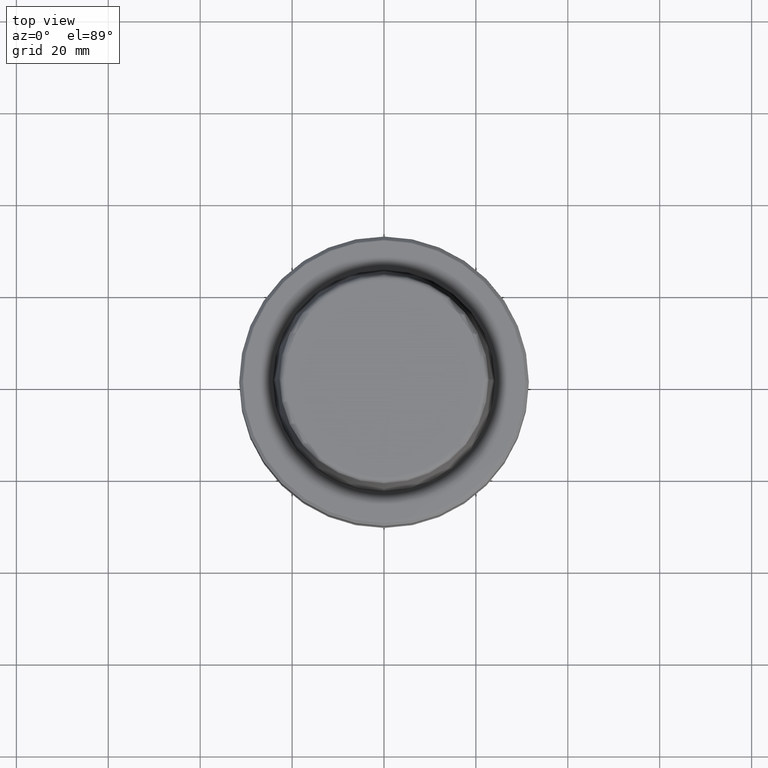
[diagram: clean part render]
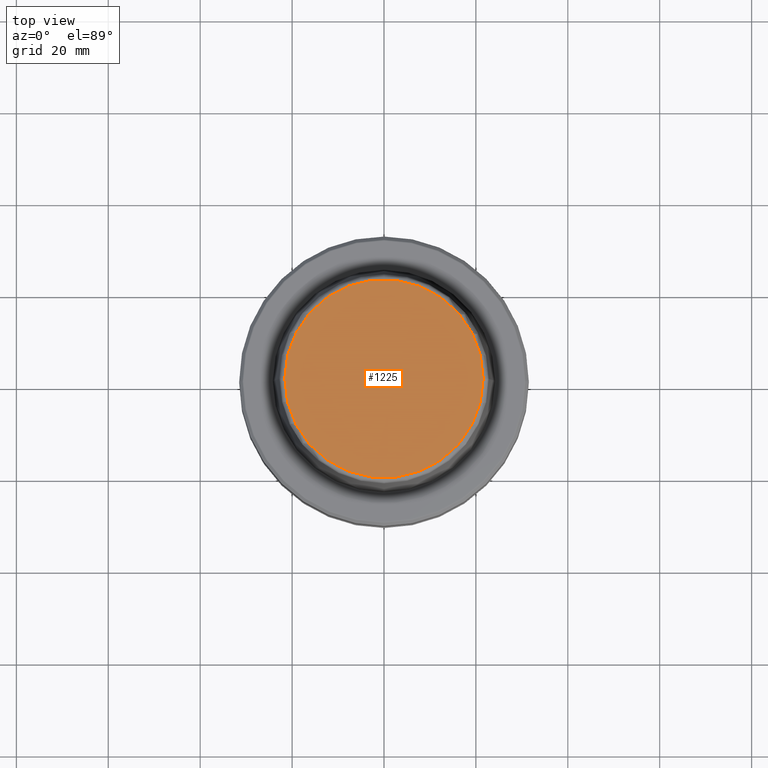
[diagram: same view with one face highlighted and labeled with its STEP entity id]
A machine part, top view. The second image highlights one B-rep face of the part: STEP entity #1225.
In plain terms, the highlighted planar face has unit normal (0, 0, -1).
Its self-contained STEP definition (entity closure, byte-faithful):
#28 = DIRECTION ( 'NONE',  ( -0.0000000000000000000, -0.0000000000000000000, 1.000000000000000000 ) ) ;
#39 = CARTESIAN_POINT ( 'NONE',  ( 0.0000000000000000000, 0.0000000000000000000, 31.89999999999999900 ) ) ;
#46 = AXIS2_PLACEMENT_3D ( 'NONE', #935, #1028, #74 ) ;
#74 = DIRECTION ( 'NONE',  ( 1.000000000000000000, 0.0000000000000000000, 0.0000000000000000000 ) ) ;
#108 = AXIS2_PLACEMENT_3D ( 'NONE', #39, #28, #857 ) ;
#126 = ORIENTED_EDGE ( 'NONE', *, *, #1158, .T. ) ;
#211 = FACE_OUTER_BOUND ( 'NONE', #890, .T. ) ;
#313 = ORIENTED_EDGE ( 'NONE', *, *, #1163, .T. ) ;
#336 = CIRCLE ( 'NONE', #46, 21.58108272732117100 ) ;
#516 = VERTEX_POINT ( 'NONE', #1276 ) ;
#590 = CIRCLE ( 'NONE', #108, 21.58108272732117100 ) ;
#640 = CARTESIAN_POINT ( 'NONE',  ( 0.0000000000000000000, 0.0000000000000000000, 31.89999999999999900 ) ) ;
#840 = CARTESIAN_POINT ( 'NONE',  ( -21.58108272732117100, 2.716307157494421400E-015, 31.89999999999999900 ) ) ;
#857 = DIRECTION ( 'NONE',  ( 1.000000000000000000, 0.0000000000000000000, 0.0000000000000000000 ) ) ;
#874 = DIRECTION ( 'NONE',  ( 0.0000000000000000000, 0.0000000000000000000, -1.000000000000000000 ) ) ;
#890 = EDGE_LOOP ( 'NONE', ( #313, #126 ) ) ;
#931 = PLANE ( 'NONE',  #972 ) ;
#935 = CARTESIAN_POINT ( 'NONE',  ( 0.0000000000000000000, 0.0000000000000000000, 31.89999999999999900 ) ) ;
#972 = AXIS2_PLACEMENT_3D ( 'NONE', #640, #874, #1070 ) ;
#981 = VERTEX_POINT ( 'NONE', #840 ) ;
#1028 = DIRECTION ( 'NONE',  ( -0.0000000000000000000, -0.0000000000000000000, 1.000000000000000000 ) ) ;
#1070 = DIRECTION ( 'NONE',  ( -1.000000000000000000, 0.0000000000000000000, -0.0000000000000000000 ) ) ;
#1158 = EDGE_CURVE ( 'NONE', #981, #516, #590, .T. ) ;
#1163 = EDGE_CURVE ( 'NONE', #516, #981, #336, .T. ) ;
#1225 = ADVANCED_FACE ( 'NONE', ( #211 ), #931, .F. ) ;
#1276 = CARTESIAN_POINT ( 'NONE',  ( 21.58108272732117100, 0.0000000000000000000, 31.89999999999999900 ) ) ;